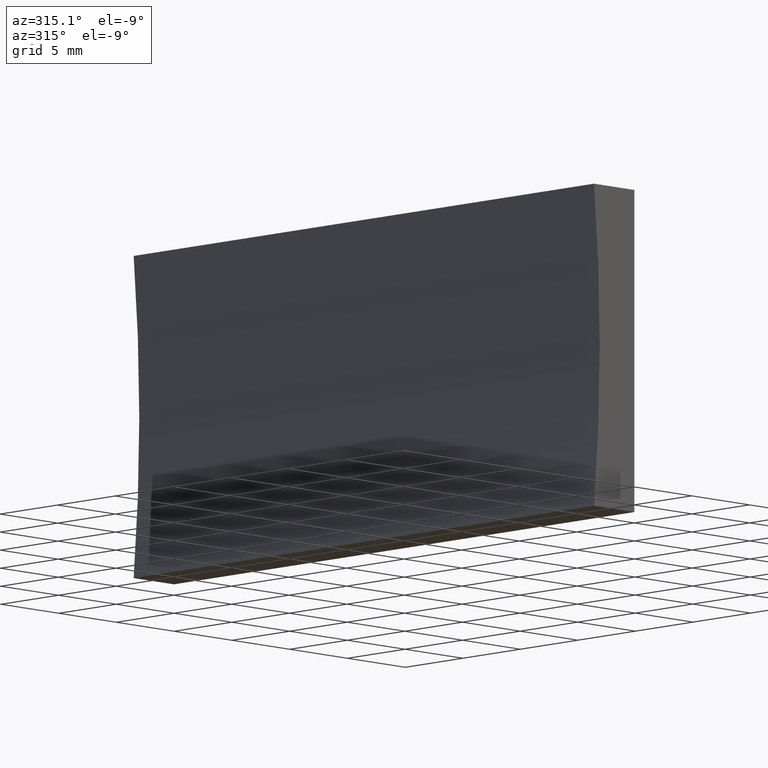
[diagram: clean part render]
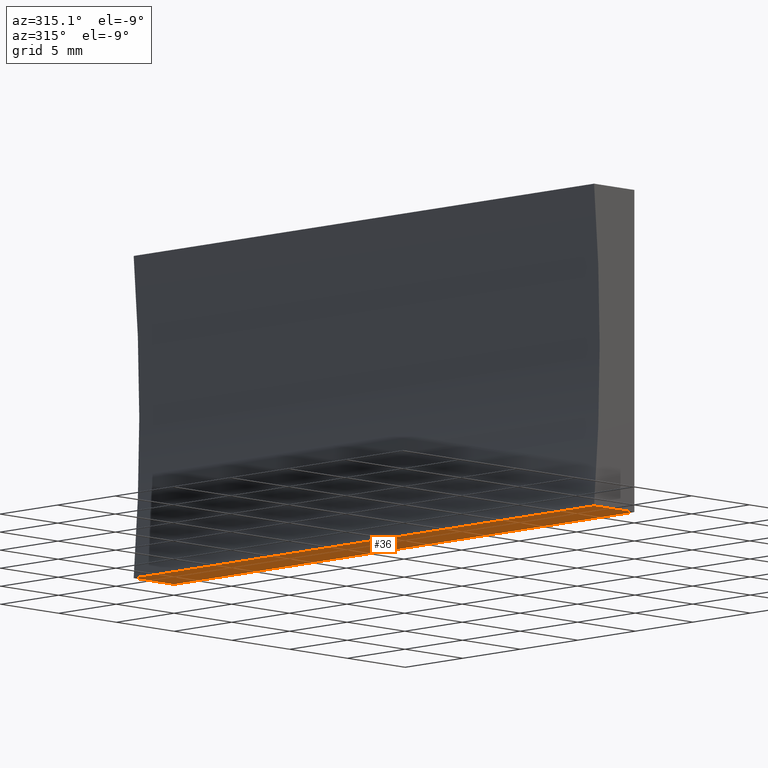
[diagram: same view with one face highlighted and labeled with its STEP entity id]
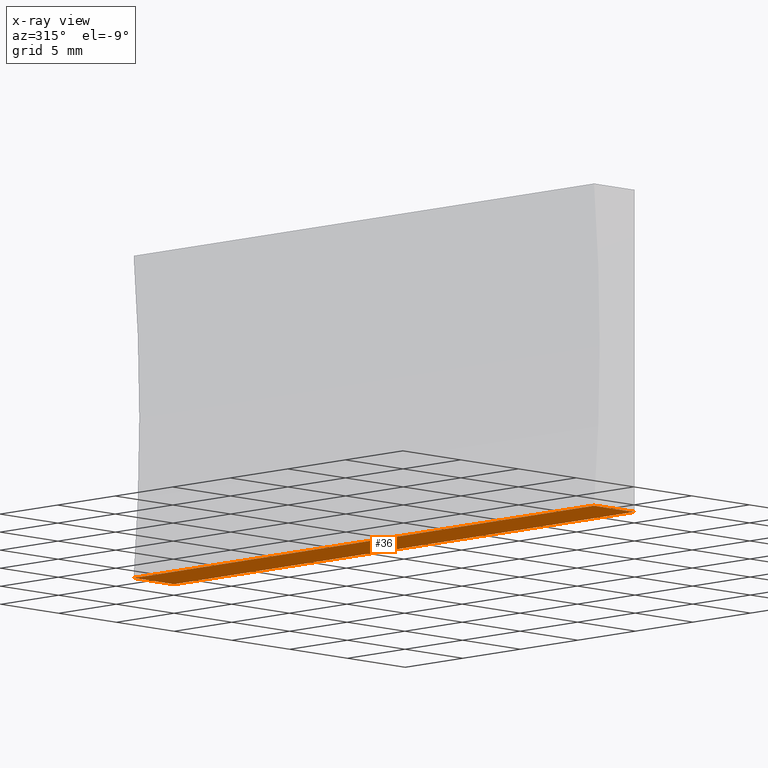
[diagram: x-ray of the same camera — body ghosted, the highlighted face saturated]
A machine part, auxiliary view. The second image highlights one B-rep face of the part: STEP entity #36.
The next image is the same camera in x-ray: the body ghosted, the highlighted face saturated — about 0% of this face is hidden behind the body in this view.
In plain terms, the highlighted planar face has unit normal (-0, 0, 1).
Its self-contained STEP definition (entity closure, byte-faithful):
#10 = ORIENTED_EDGE ( 'NONE', *, *, #107, .T. ) ;
#15 = DIRECTION ( 'NONE',  ( -1.000000000000000000, 0.0000000000000000000, -9.956242759457456300E-016 ) ) ;
#16 = LINE ( 'NONE', #173, #117 ) ;
#20 = AXIS2_PLACEMENT_3D ( 'NONE', #87, #23, #175 ) ;
#23 = DIRECTION ( 'NONE',  ( -9.956242759457456300E-016, 0.0000000000000000000, 1.000000000000000000 ) ) ;
#25 = EDGE_CURVE ( 'NONE', #122, #154, #89, .T. ) ;
#36 = ADVANCED_FACE ( 'NONE', ( #92 ), #151, .F. ) ;
#49 = EDGE_LOOP ( 'NONE', ( #84, #156, #202, #10 ) ) ;
#52 = CARTESIAN_POINT ( 'NONE',  ( -3.484695015755795200, 40.00000000000000000, -1.214306433183765000E-014 ) ) ;
#84 = ORIENTED_EDGE ( 'NONE', *, *, #125, .T. ) ;
#87 = CARTESIAN_POINT ( 'NONE',  ( 0.0000000000000000000, 40.00000000000000000, 0.0000000000000000000 ) ) ;
#89 = LINE ( 'NONE', #174, #138 ) ;
#92 = FACE_OUTER_BOUND ( 'NONE', #49, .T. ) ;
#97 = VERTEX_POINT ( 'NONE', #158 ) ;
#107 = EDGE_CURVE ( 'NONE', #122, #140, #16, .T. ) ;
#108 = DIRECTION ( 'NONE',  ( -1.000000000000000000, 0.0000000000000000000, -9.956242759457456300E-016 ) ) ;
#112 = CARTESIAN_POINT ( 'NONE',  ( 0.0000000000000000000, 40.00000000000000000, 0.0000000000000000000 ) ) ;
#114 = VECTOR ( 'NONE', #108, 1000.000000000000000 ) ;
#115 = EDGE_CURVE ( 'NONE', #154, #97, #185, .T. ) ;
#117 = VECTOR ( 'NONE', #170, 1000.000000000000000 ) ;
#119 = CARTESIAN_POINT ( 'NONE',  ( -3.484695015755795200, 40.00000000000000000, -1.214306433183765000E-014 ) ) ;
#121 = LINE ( 'NONE', #124, #114 ) ;
#122 = VERTEX_POINT ( 'NONE', #112 ) ;
#124 = CARTESIAN_POINT ( 'NONE',  ( 0.0000000000000000000, 0.0000000000000000000, 0.0000000000000000000 ) ) ;
#125 = EDGE_CURVE ( 'NONE', #140, #97, #121, .T. ) ;
#130 = CARTESIAN_POINT ( 'NONE',  ( 0.0000000000000000000, 0.0000000000000000000, 0.0000000000000000000 ) ) ;
#138 = VECTOR ( 'NONE', #15, 1000.000000000000000 ) ;
#139 = VECTOR ( 'NONE', #196, 1000.000000000000000 ) ;
#140 = VERTEX_POINT ( 'NONE', #130 ) ;
#151 = PLANE ( 'NONE',  #20 ) ;
#154 = VERTEX_POINT ( 'NONE', #52 ) ;
#156 = ORIENTED_EDGE ( 'NONE', *, *, #115, .F. ) ;
#158 = CARTESIAN_POINT ( 'NONE',  ( -3.484695015755795200, 0.0000000000000000000, -1.214306433183765000E-014 ) ) ;
#170 = DIRECTION ( 'NONE',  ( -0.0000000000000000000, -1.000000000000000000, -0.0000000000000000000 ) ) ;
#173 = CARTESIAN_POINT ( 'NONE',  ( 0.0000000000000000000, 40.00000000000000000, 0.0000000000000000000 ) ) ;
#174 = CARTESIAN_POINT ( 'NONE',  ( 0.0000000000000000000, 40.00000000000000000, 0.0000000000000000000 ) ) ;
#175 = DIRECTION ( 'NONE',  ( 1.000000000000000000, 0.0000000000000000000, 9.956242759457456300E-016 ) ) ;
#185 = LINE ( 'NONE', #119, #139 ) ;
#196 = DIRECTION ( 'NONE',  ( -0.0000000000000000000, -1.000000000000000000, -0.0000000000000000000 ) ) ;
#202 = ORIENTED_EDGE ( 'NONE', *, *, #25, .F. ) ;